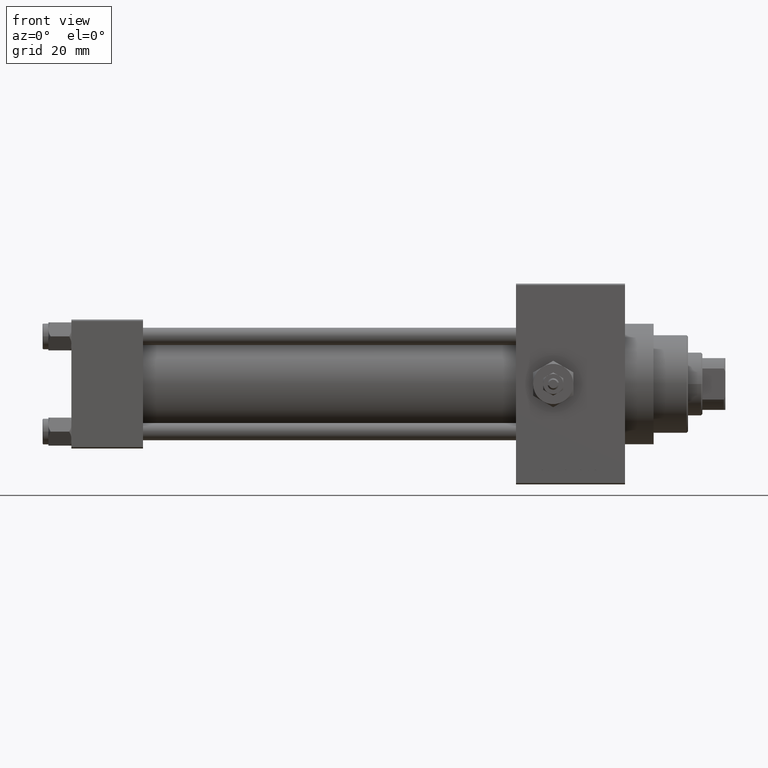
[diagram: clean part render]
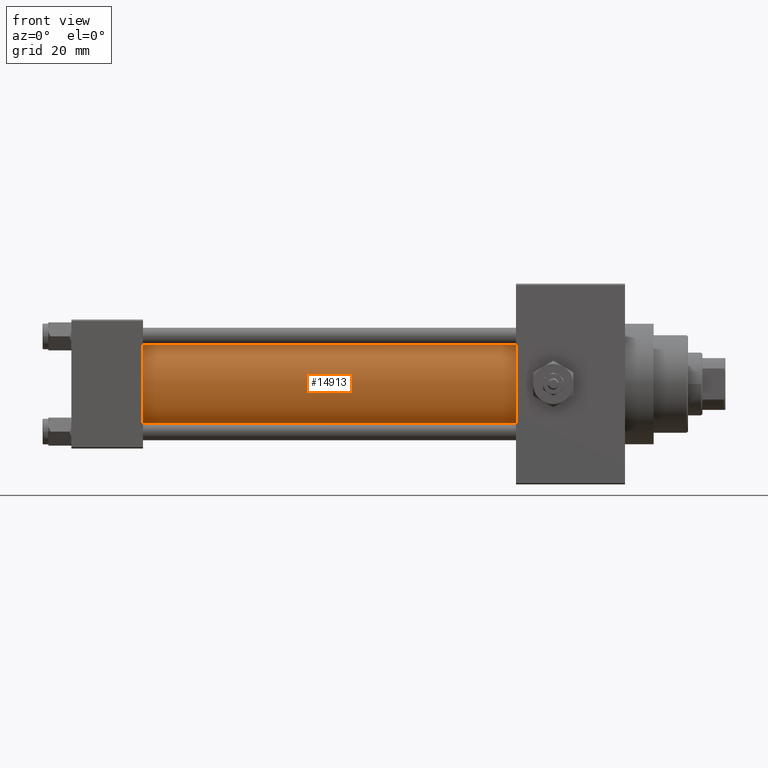
[diagram: same view with one face highlighted and labeled with its STEP entity id]
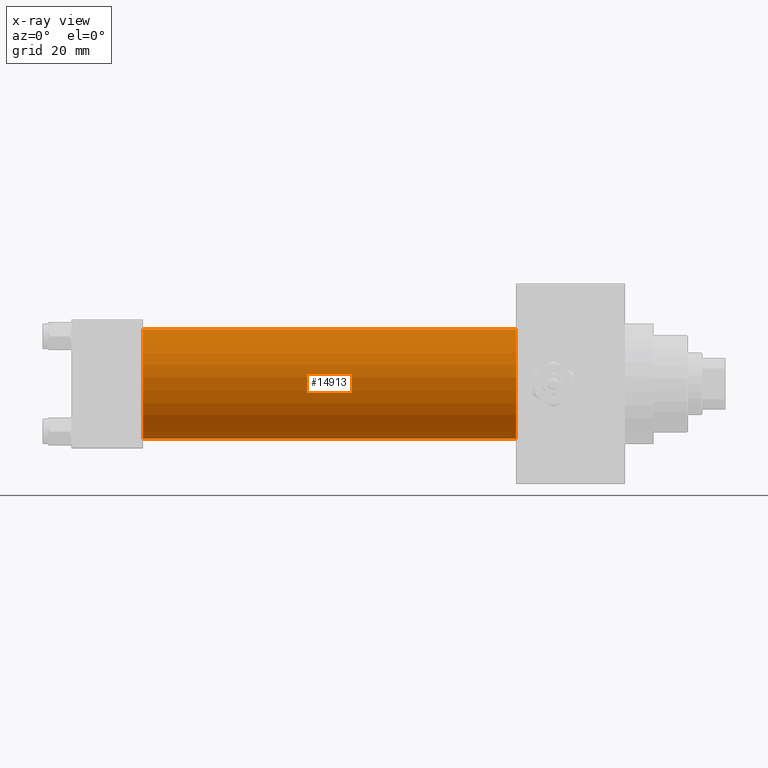
[diagram: x-ray of the same camera — body ghosted, the highlighted face saturated]
A machine part, front view. The second image highlights one B-rep face of the part: STEP entity #14913.
The next image is the same camera in x-ray: the body ghosted, the highlighted face saturated — about 0% of this face is hidden behind the body in this view.
In plain terms, the highlighted cylindrical surface (partial cylindrical patch) has radius 19 mm, axis along (-1, -0, -0).
Its self-contained STEP definition (entity closure, byte-faithful):
#1587 = ORIENTED_EDGE ( 'NONE', *, *, #31662, .F. ) ;
#2491 = LINE ( 'NONE', #10348, #21888 ) ;
#3915 = CARTESIAN_POINT ( 'NONE',  ( 24.99999999999999289, -2.602085213965210642E-15, 19.00000000000000000 ) ) ;
#5368 = EDGE_CURVE ( 'NONE', #22268, #42456, #7289, .T. ) ;
#6730 = FACE_OUTER_BOUND ( 'NONE', #46376, .T. ) ;
#6773 = VERTEX_POINT ( 'NONE', #44978 ) ;
#7209 = CYLINDRICAL_SURFACE ( 'NONE', #43550, 19.00000000000000000 ) ;
#7289 = CIRCLE ( 'NONE', #32390, 19.00000000000000000 ) ;
#7657 = ORIENTED_EDGE ( 'NONE', *, *, #5368, .T. ) ;
#9295 = VECTOR ( 'NONE', #46102, 1000.000000000000000 ) ;
#10348 = CARTESIAN_POINT ( 'NONE',  ( 155.0000000000000000, -2.602085213965210642E-15, 19.00000000000000000 ) ) ;
#11103 = AXIS2_PLACEMENT_3D ( 'NONE', #17475, #43497, #17964 ) ;
#14148 = ORIENTED_EDGE ( 'NONE', *, *, #21866, .F. ) ;
#14913 = ADVANCED_FACE ( 'NONE', ( #6730 ), #7209, .T. ) ;
#17475 = CARTESIAN_POINT ( 'NONE',  ( 155.0000000000000000, -2.602085213965210642E-15, 0.000000000000000000 ) ) ;
#17964 = DIRECTION ( 'NONE',  ( 0.000000000000000000, 0.000000000000000000, -1.000000000000000000 ) ) ;
#17985 = DIRECTION ( 'NONE',  ( -1.000000000000000000, -0.000000000000000000, -0.000000000000000000 ) ) ;
#20816 = CARTESIAN_POINT ( 'NONE',  ( 155.0000000000000000, -2.752562955852396712E-16, -19.00000000000000000 ) ) ;
#21793 = DIRECTION ( 'NONE',  ( 0.000000000000000000, 0.000000000000000000, 1.000000000000000000 ) ) ;
#21866 = EDGE_CURVE ( 'NONE', #35754, #42456, #35300, .T. ) ;
#21888 = VECTOR ( 'NONE', #17985, 1000.000000000000000 ) ;
#22268 = VERTEX_POINT ( 'NONE', #3915 ) ;
#23392 = EDGE_CURVE ( 'NONE', #6773, #22268, #2491, .T. ) ;
#25222 = DIRECTION ( 'NONE',  ( 1.000000000000000000, -0.000000000000000000, 0.000000000000000000 ) ) ;
#25466 = CARTESIAN_POINT ( 'NONE',  ( 24.99999999999999289, -2.602085213965210642E-15, 0.000000000000000000 ) ) ;
#27513 = CARTESIAN_POINT ( 'NONE',  ( 24.99999999999999289, -2.752562955852396712E-16, -19.00000000000000000 ) ) ;
#28359 = CIRCLE ( 'NONE', #11103, 19.00000000000000000 ) ;
#31509 = CARTESIAN_POINT ( 'NONE',  ( 155.0000000000000000, -2.752562955852396712E-16, -19.00000000000000000 ) ) ;
#31662 = EDGE_CURVE ( 'NONE', #6773, #35754, #28359, .T. ) ;
#32390 = AXIS2_PLACEMENT_3D ( 'NONE', #25466, #25222, #21793 ) ;
#35300 = LINE ( 'NONE', #20816, #9295 ) ;
#35754 = VERTEX_POINT ( 'NONE', #31509 ) ;
#37172 = CARTESIAN_POINT ( 'NONE',  ( 155.0000000000000000, -2.602085213965210642E-15, 0.000000000000000000 ) ) ;
#40012 = ORIENTED_EDGE ( 'NONE', *, *, #23392, .T. ) ;
#42456 = VERTEX_POINT ( 'NONE', #27513 ) ;
#43497 = DIRECTION ( 'NONE',  ( 1.000000000000000000, 0.000000000000000000, 0.000000000000000000 ) ) ;
#43550 = AXIS2_PLACEMENT_3D ( 'NONE', #37172, #48486, #44056 ) ;
#44056 = DIRECTION ( 'NONE',  ( 0.000000000000000000, 0.000000000000000000, 1.000000000000000000 ) ) ;
#44978 = CARTESIAN_POINT ( 'NONE',  ( 155.0000000000000000, -2.602085213965210642E-15, 19.00000000000000000 ) ) ;
#46102 = DIRECTION ( 'NONE',  ( -1.000000000000000000, -0.000000000000000000, -0.000000000000000000 ) ) ;
#46376 = EDGE_LOOP ( 'NONE', ( #14148, #1587, #40012, #7657 ) ) ;
#48486 = DIRECTION ( 'NONE',  ( -1.000000000000000000, -0.000000000000000000, -0.000000000000000000 ) ) ;